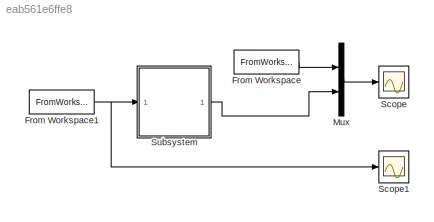
MODEL slx_eab561e6ffe8
KIND model
CONFIG AbsTol = auto
CONFIG EnableMultiTasking = off
CONFIG FixedStep = 0.0104
CONFIG MaxStep = auto
CONFIG MinStep = auto
CONFIG RelTol = 1e-3
CONFIG SampleTimeConstraint = Unconstrained
CONFIG Solver = FixedStepAuto
CONFIG SolverName = FixedStepAuto
CONFIG StartTime = 0.0
CONFIG StopTime = t(end)
BLOCK [FromWorkspace] From Workspace
  SampleTime = 0.0104
  VariableName = test
  ZeroCross = on
BLOCK [FromWorkspace] From Workspace1
  SampleTime = 0.0104
  VariableName = sim
  ZeroCross = on
BLOCK [Mux] Mux
  DisplayOption = bar
  Inputs = 2
  Ports = [2, 1]
BLOCK [Scope] Scope
  Floating = off
  NumInputPorts = 1
  Ports = [1]
  ScopeSpecificationString = Simulink.scopes.TimeScopeBlockCfg('CurrentConfiguration', extmgr.ConfigurationSet(extmgr.Configuration('Core','General UI',true),extmgr.Configuration('Core','Source UI',true),extmgr.Configuration('Sources','WiredSimulink',true),extmgr.Configuration('Visuals','Time Domain',true,'SerializedDisplays',{struct('MinYLimReal','-0.39454','MaxYLimReal','2.41638','YLabelReal','','MinYLimMag','0.00000','MaxY...<+1348ch>
BLOCK [Scope] Scope1
  Floating = off
  NumInputPorts = 1
  Ports = [1]
  ScopeSpecificationString = Simulink.scopes.TimeScopeBlockCfg('CurrentConfiguration', extmgr.ConfigurationSet(extmgr.Configuration('Core','General UI',true),extmgr.Configuration('Core','Source UI',true),extmgr.Configuration('Sources','WiredSimulink',true,'DataLoggingVariableName','ScopeData1'),extmgr.Configuration('Visuals','Time Domain',true,'SerializedDisplays',{struct('MinYLimReal','-2.25','MaxYLimReal','20.25','YLabelRea...<+1373ch>
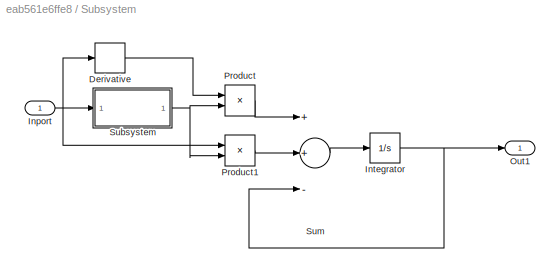
BLOCK [SubSystem] Subsystem
  Ports = [1, 1]
  RequestExecContextInheritance = off
BLOCK [Derivative] Subsystem/Derivative
BLOCK [Inport] Subsystem/Inport
  IconDisplay = Port number
BLOCK [Integrator] Subsystem/Integrator
  Ports = [1, 1]
BLOCK [Outport] Subsystem/Out1
  IconDisplay = Port number
BLOCK [Product] Subsystem/Product
  InputSameDT = off
  OutDataTypeStr = Inherit: Inherit via internal rule
  Ports = [2, 1]
  RndMeth = Floor
  SaturateOnIntegerOverflow = off
BLOCK [Product] Subsystem/Product1
  InputSameDT = off
  OutDataTypeStr = Inherit: Inherit via internal rule
  Ports = [2, 1]
  RndMeth = Floor
  SaturateOnIntegerOverflow = off
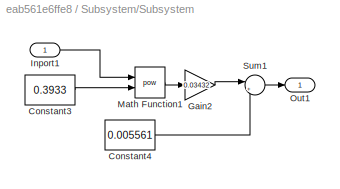
BLOCK [SubSystem] Subsystem/Subsystem
  Ports = [1, 1]
  RequestExecContextInheritance = off
BLOCK [Constant] Subsystem/Subsystem/Constant3
  Value = 0.3933
BLOCK [Constant] Subsystem/Subsystem/Constant4
  Value = 0.005561
BLOCK [Gain] Subsystem/Subsystem/Gain2
  Gain = 0.03432
  OutDataTypeStr = Inherit: Inherit via internal rule
  ParamDataTypeStr = Inherit: Inherit via internal rule
  SaturateOnIntegerOverflow = off
BLOCK [Inport] Subsystem/Subsystem/Inport1
  IconDisplay = Port number
BLOCK [Math] Subsystem/Subsystem/Math Function1
  Operator = pow
  Ports = [2, 1]
BLOCK [Outport] Subsystem/Subsystem/Out1
  IconDisplay = Port number
BLOCK [Sum] Subsystem/Subsystem/Sum1
  IconShape = round
  InputSameDT = off
  Inputs = |++
  OutDataTypeStr = Inherit: Inherit via internal rule
  Ports = [2, 1]
  SaturateOnIntegerOverflow = off
BLOCK [Sum] Subsystem/Sum
  InputSameDT = off
  Inputs = ++-
  OutDataTypeStr = Inherit: Inherit via internal rule
  Ports = [3, 1]
  SaturateOnIntegerOverflow = off
NET From Workspace1:1 -> Scope1:1, Subsystem:1
LINE From Workspace:1 -> Mux:1
LINE Mux:1 -> Scope:1
LINE Subsystem/Derivative:1 -> Subsystem/Product:1
NET Subsystem/Inport:1 -> Subsystem/Derivative:1, Subsystem/Product1:1, Subsystem/Subsystem:1
NET Subsystem/Integrator:1 -> Subsystem/Out1:1, Subsystem/Sum:3
LINE Subsystem/Product1:1 -> Subsystem/Sum:2
LINE Subsystem/Product:1 -> Subsystem/Sum:1
LINE Subsystem/Subsystem/Constant3:1 -> Subsystem/Subsystem/Math Function1:2
LINE Subsystem/Subsystem/Constant4:1 -> Subsystem/Subsystem/Sum1:2
LINE Subsystem/Subsystem/Gain2:1 -> Subsystem/Subsystem/Sum1:1
LINE Subsystem/Subsystem/Inport1:1 -> Subsystem/Subsystem/Math Function1:1
LINE Subsystem/Subsystem/Math Function1:1 -> Subsystem/Subsystem/Gain2:1
LINE Subsystem/Subsystem/Sum1:1 -> Subsystem/Subsystem/Out1:1
NET Subsystem/Subsystem:1 -> Subsystem/Product1:2, Subsystem/Product:2
LINE Subsystem/Sum:1 -> Subsystem/Integrator:1
LINE Subsystem:1 -> Mux:2
note: NET lines group one-source signal fan-out (src -> all destinations, sorted); 1:1 wires keep LINE
